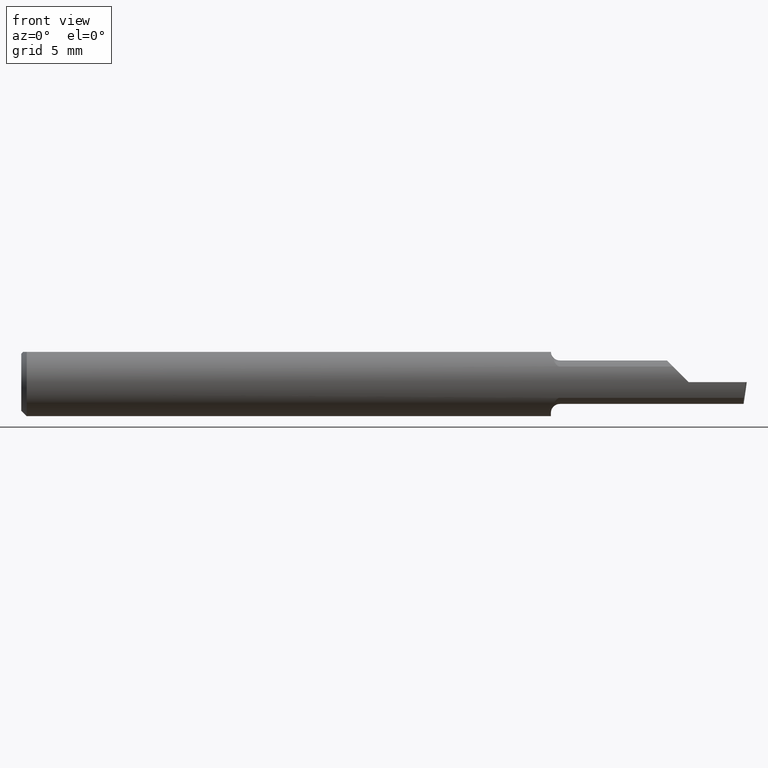
[diagram: clean part render]
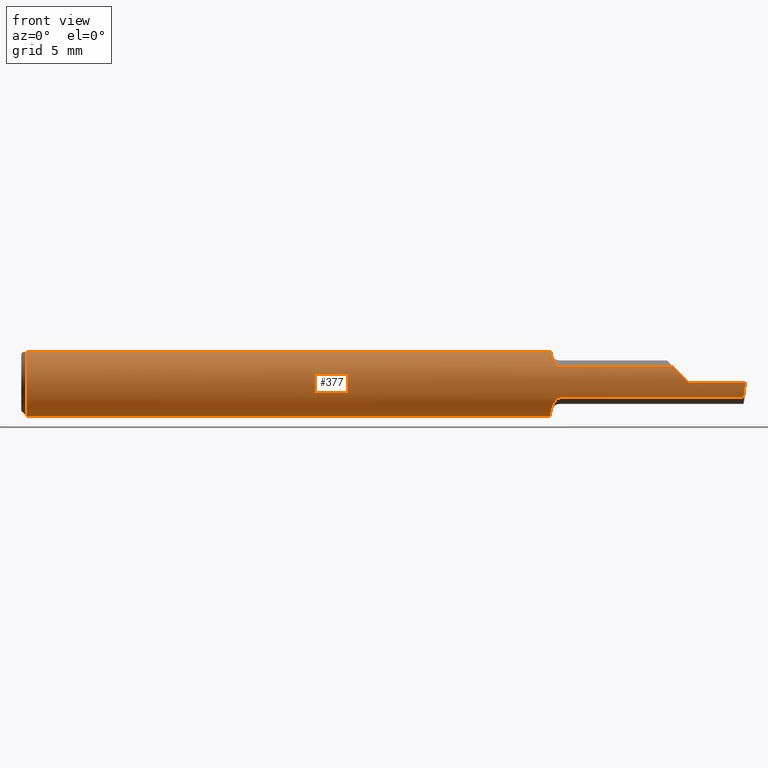
[diagram: same view with one face highlighted and labeled with its STEP entity id]
A machine part, front view. The second image highlights one B-rep face of the part: STEP entity #377.
In plain terms, the highlighted cylindrical surface (edge-blend (fillet) strip) has radius 2.3774 mm, axis along (-1, -0, -0).
Its self-contained STEP definition (entity closure, byte-faithful):
#2 = CARTESIAN_POINT ( 'NONE',  ( 1.475354605856553425, -0.08039319987159070091, -0.04797642756495486965 ) ) ;
#3 = VERTEX_POINT ( 'NONE', #570 ) ;
#6 = CARTESIAN_POINT ( 'NONE',  ( 1.482100790213033426, -0.08307469879518095124, -0.04312255117789263320 ) ) ;
#7 = VERTEX_POINT ( 'NONE', #457 ) ;
#8 = CARTESIAN_POINT ( 'NONE',  ( 1.840000000000000080, -0.09360000000000005815, 1.959434878635762025E-17 ) ) ;
#9 = LINE ( 'NONE', #612, #77 ) ;
#11 = AXIS2_PLACEMENT_3D ( 'NONE', #184, #492, #599 ) ;
#12 = VERTEX_POINT ( 'NONE', #64 ) ;
#22 = VERTEX_POINT ( 'NONE', #296 ) ;
#23 = CARTESIAN_POINT ( 'NONE',  ( 1.463721006865826846, -0.06478644025684780761, 0.06776242552123266927 ) ) ;
#24 = VECTOR ( 'NONE', #215, 39.37007874015748143 ) ;
#41 = ORIENTED_EDGE ( 'NONE', *, *, #302, .T. ) ;
#47 = AXIS2_PLACEMENT_3D ( 'NONE', #372, #316, #305 ) ;
#55 = CARTESIAN_POINT ( 'NONE',  ( 1.463605992736883632, -0.06448586599545333420, -0.06805619079784636094 ) ) ;
#57 = CARTESIAN_POINT ( 'NONE',  ( 1.484999999999999876, -0.08307469879518097899, -0.04312255117789268177 ) ) ;
#60 = CARTESIAN_POINT ( 'NONE',  ( 1.484999999999999876, -0.08307469879518063205, 0.04312255117789300790 ) ) ;
#61 = VERTEX_POINT ( 'NONE', #582 ) ;
#64 = CARTESIAN_POINT ( 'NONE',  ( 1.840000000000000080, -0.09360000000000005815, 1.959434878635762025E-17 ) ) ;
#66 = CARTESIAN_POINT ( 'NONE',  ( 1.467169981117899757, -0.07201923175886887352, 0.06001882546782344452 ) ) ;
#77 = VECTOR ( 'NONE', #660, 39.37007874015748143 ) ;
#90 = EDGE_CURVE ( 'NONE', #342, #547, #318, .T. ) ;
#93 = DIRECTION ( 'NONE',  ( -1.000000000000000000, -0.0000000000000000000, -0.0000000000000000000 ) ) ;
#94 = VECTOR ( 'NONE', #279, 39.37007874015748143 ) ;
#95 = ORIENTED_EDGE ( 'NONE', *, *, #149, .F. ) ;
#101 = B_SPLINE_CURVE_WITH_KNOTS ( 'NONE', 3,
 ( #57, #6, #293, #2, #249, #564, #152, #55, #353, #404, #406, #107 ),
 .UNSPECIFIED., .F., .F.,
 ( 4, 2, 2, 2, 2, 4 ),
 ( 1.963546462201886234E-07, 0.0002171101490734187974, 0.0004340239435006174387, 0.0008678515323550139082, 0.001301679121209410378, 0.001735506710063806739 ),
 .UNSPECIFIED. ) ;
#103 = VECTOR ( 'NONE', #385, 39.37007874015748143 ) ;
#107 = CARTESIAN_POINT ( 'NONE',  ( 1.460020127471512996, -0.04149999999999998829, -0.08389702020930184245 ) ) ;
#120 = CARTESIAN_POINT ( 'NONE',  ( 1.460020127471512996, -0.04149999999999998829, -0.08389702020930184245 ) ) ;
#136 = DIRECTION ( 'NONE',  ( 0.0000000000000000000, 0.0000000000000000000, 1.000000000000000000 ) ) ;
#149 = EDGE_CURVE ( 'NONE', #651, #659, #584, .T. ) ;
#152 = CARTESIAN_POINT ( 'NONE',  ( 1.467076397983110958, -0.07187891021191490648, -0.06019546731975674442 ) ) ;
#154 = CARTESIAN_POINT ( 'NONE',  ( 1.796877448822106649, -0.08307469879518077083, 0.04312255117789291076 ) ) ;
#173 = EDGE_CURVE ( 'NONE', #587, #3, #186, .T. ) ;
#174 = ORIENTED_EDGE ( 'NONE', *, *, #286, .T. ) ;
#176 = DIRECTION ( 'NONE',  ( -1.000000000000000000, -0.0000000000000000000, -0.0000000000000000000 ) ) ;
#184 = CARTESIAN_POINT ( 'NONE',  ( 0.01499999999999999598, 0.0000000000000000000, 0.0000000000000000000 ) ) ;
#186 = LINE ( 'NONE', #577, #270 ) ;
#187 = DIRECTION ( 'NONE',  ( 0.0000000000000000000, 0.0000000000000000000, 1.000000000000000000 ) ) ;
#195 = VERTEX_POINT ( 'NONE', #540 ) ;
#200 = EDGE_LOOP ( 'NONE', ( #95, #41, #498, #334, #658, #557, #509, #480, #390, #174, #636, #542, #446 ) ) ;
#210 = CARTESIAN_POINT ( 'NONE',  ( 1.479521451227007400, -0.08233651528522391294, 0.04455777109850302120 ) ) ;
#211 = CARTESIAN_POINT ( 'NONE',  ( 1.469277238843510025, -0.07518688180261749732, 0.05595855205958090439 ) ) ;
#215 = DIRECTION ( 'NONE',  ( -1.000000000000000000, -0.0000000000000000000, -0.0000000000000000000 ) ) ;
#218 = LINE ( 'NONE', #231, #94 ) ;
#220 = CARTESIAN_POINT ( 'NONE',  ( 1.460661035553191267, -0.05185656404701177724, 0.07811662714583193778 ) ) ;
#226 = CARTESIAN_POINT ( 'NONE',  ( 0.01499999999999999598, 0.0000000000000000000, 0.0000000000000000000 ) ) ;
#227 = CARTESIAN_POINT ( 'NONE',  ( 0.01499999999999999598, 0.04209513035969837669, 0.08360000000000000764 ) ) ;
#231 = CARTESIAN_POINT ( 'NONE',  ( 0.0000000000000000000, 0.04209513035969837669, 0.08360000000000000764 ) ) ;
#242 = VERTEX_POINT ( 'NONE', #227 ) ;
#246 = CARTESIAN_POINT ( 'NONE',  ( 1.824917075065774830, -0.09360000000000001652, 0.01508292493422502302 ) ) ;
#249 = CARTESIAN_POINT ( 'NONE',  ( 1.473672693420809754, -0.07917899622880059107, -0.04997532113045946578 ) ) ;
#268 = CARTESIAN_POINT ( 'NONE',  ( 1.459999999999999742, -0.03946024096385552377, -0.08487549341873930342 ) ) ;
#270 = VECTOR ( 'NONE', #470, 39.37007874015748143 ) ;
#276 = EDGE_CURVE ( 'NONE', #22, #12, #605, .T. ) ;
#279 = DIRECTION ( 'NONE',  ( 1.000000000000000000, 0.0000000000000000000, 0.0000000000000000000 ) ) ;
#286 = EDGE_CURVE ( 'NONE', #242, #7, #218, .T. ) ;
#287 = CARTESIAN_POINT ( 'NONE',  ( 0.01499999999999999598, 0.0000000000000000000, -0.09360000000000001652 ) ) ;
#293 = CARTESIAN_POINT ( 'NONE',  ( 1.479498465877713942, -0.08233174416856396671, -0.04456779206614371047 ) ) ;
#296 = CARTESIAN_POINT ( 'NONE',  ( 1.996386342823452287, -0.09360000000000009979, -6.634435288474569554E-17 ) ) ;
#302 = EDGE_CURVE ( 'NONE', #651, #22, #610, .T. ) ;
#305 = DIRECTION ( 'NONE',  ( 0.0000000000000000000, 0.0000000000000000000, -1.000000000000000000 ) ) ;
#314 = CARTESIAN_POINT ( 'NONE',  ( 1.669999999999999929, -0.08307469879518075695, -0.04312255117789293157 ) ) ;
#316 = DIRECTION ( 'NONE',  ( 1.000000000000000000, 0.0000000000000000000, 0.0000000000000000000 ) ) ;
#318 = CIRCLE ( 'NONE', #598, 0.09360000000000001652 ) ;
#320 = EDGE_CURVE ( 'NONE', #242, #342, #369, .T. ) ;
#334 = ORIENTED_EDGE ( 'NONE', *, *, #517, .T. ) ;
#342 = VERTEX_POINT ( 'NONE', #287 ) ;
#353 = CARTESIAN_POINT ( 'NONE',  ( 1.462355770679723221, -0.06040702343486038794, -0.07171535245186137775 ) ) ;
#356 = CARTESIAN_POINT ( 'NONE',  ( 0.01499999999999999944, -0.04209513035969835587, 0.08360000000000000764 ) ) ;
#358 = B_SPLINE_CURVE_WITH_KNOTS ( 'NONE', 3,
 ( #463, #581, #220, #623, #23, #66, #211, #419, #625, #210, #531, #60 ),
 .UNSPECIFIED., .F., .F.,
 ( 4, 2, 2, 2, 2, 4 ),
 ( 4.385794166508631868E-07, 0.0004249653867803445360, 0.0008494921941440379543, 0.001274019001507731372, 0.001486282405189578082, 0.001698545808871425008 ),
 .UNSPECIFIED. ) ;
#369 = CIRCLE ( 'NONE', #11, 0.09360000000000001652 ) ;
#372 = CARTESIAN_POINT ( 'NONE',  ( 1.459999999999999742, 0.0000000000000000000, 0.0000000000000000000 ) ) ;
#377 = ADVANCED_FACE ( 'NONE', ( #510 ), #654, .T. ) ;
#385 = DIRECTION ( 'NONE',  ( -1.000000000000000000, -0.0000000000000000000, -0.0000000000000000000 ) ) ;
#386 = EDGE_CURVE ( 'NONE', #195, #587, #358, .T. ) ;
#390 = ORIENTED_EDGE ( 'NONE', *, *, #320, .F. ) ;
#404 = CARTESIAN_POINT ( 'NONE',  ( 1.460604804002112234, -0.05145819953596712099, -0.07838465384289877713 ) ) ;
#406 = CARTESIAN_POINT ( 'NONE',  ( 1.460121283746727894, -0.04659318327468387616, -0.08137765652544184936 ) ) ;
#411 = EDGE_CURVE ( 'NONE', #61, #7, #424, .T. ) ;
#419 = CARTESIAN_POINT ( 'NONE',  ( 1.473723886093657676, -0.07921817987507920322, 0.04991299092652131536 ) ) ;
#424 = CIRCLE ( 'NONE', #47, 0.09360000000000001652 ) ;
#426 = EDGE_CURVE ( 'NONE', #473, #61, #614, .T. ) ;
#427 = CARTESIAN_POINT ( 'NONE',  ( 1.991365359011874947, -0.08307469879518075695, -0.04312255117789293157 ) ) ;
#446 = ORIENTED_EDGE ( 'NONE', *, *, #556, .F. ) ;
#450 = AXIS2_PLACEMENT_3D ( 'NONE', #549, #93, #187 ) ;
#455 = CARTESIAN_POINT ( 'NONE',  ( 1.810264301876177928, -0.09002356847881788637, 0.02973569812382168345 ) ) ;
#457 = CARTESIAN_POINT ( 'NONE',  ( 1.459999999999999742, 0.04209513035969836975, 0.08360000000000000764 ) ) ;
#462 = CARTESIAN_POINT ( 'NONE',  ( 1.991365359011874947, -0.08307469879518075695, -0.04312255117789293157 ) ) ;
#463 = CARTESIAN_POINT ( 'NONE',  ( 1.460033712670300021, -0.04209513035969835587, 0.08360000000000000764 ) ) ;
#470 = DIRECTION ( 'NONE',  ( 1.000000000000000000, 0.0000000000000000000, 0.0000000000000000000 ) ) ;
#472 = CARTESIAN_POINT ( 'NONE',  ( 1.460006719116742291, -0.04082489400077268099, -0.08423096411932438909 ) ) ;
#473 = VERTEX_POINT ( 'NONE', #637 ) ;
#476 = CARTESIAN_POINT ( 'NONE',  ( 1.459999999999999742, -0.04014498638740777309, -0.08455714216888013390 ) ) ;
#480 = ORIENTED_EDGE ( 'NONE', *, *, #90, .F. ) ;
#485 = CARTESIAN_POINT ( 'NONE',  ( 1.996386342823452287, -0.09360000000000009979, -6.634435288474569554E-17 ) ) ;
#492 = DIRECTION ( 'NONE',  ( -1.000000000000000000, -0.0000000000000000000, -0.0000000000000000000 ) ) ;
#498 = ORIENTED_EDGE ( 'NONE', *, *, #276, .T. ) ;
#509 = ORIENTED_EDGE ( 'NONE', *, *, #576, .T. ) ;
#510 = FACE_OUTER_BOUND ( 'NONE', #200, .T. ) ;
#517 = EDGE_CURVE ( 'NONE', #12, #3, #643, .T. ) ;
#518 = CARTESIAN_POINT ( 'NONE',  ( 1.484999999999999876, -0.08307469879518097899, -0.04312255117789268177 ) ) ;
#531 = CARTESIAN_POINT ( 'NONE',  ( 1.482123707331537199, -0.08307469879541817814, 0.04312255117743571398 ) ) ;
#540 = CARTESIAN_POINT ( 'NONE',  ( 1.460033712670300021, -0.04209513035969835587, 0.08360000000000000764 ) ) ;
#542 = ORIENTED_EDGE ( 'NONE', *, *, #426, .F. ) ;
#547 = VERTEX_POINT ( 'NONE', #356 ) ;
#549 = CARTESIAN_POINT ( 'NONE',  ( 0.0000000000000000000, 0.0000000000000000000, 0.0000000000000000000 ) ) ;
#556 = EDGE_CURVE ( 'NONE', #659, #473, #101, .T. ) ;
#557 = ORIENTED_EDGE ( 'NONE', *, *, #386, .F. ) ;
#564 = CARTESIAN_POINT ( 'NONE',  ( 1.469237437666585322, -0.07513599091569016231, -0.05602756047418831070 ) ) ;
#570 = CARTESIAN_POINT ( 'NONE',  ( 1.796877448822106649, -0.08307469879518077083, 0.04312255117789291076 ) ) ;
#576 = EDGE_CURVE ( 'NONE', #195, #547, #9, .T. ) ;
#577 = CARTESIAN_POINT ( 'NONE',  ( 1.669999999999999929, -0.08307469879518075695, 0.04312255117789293157 ) ) ;
#581 = CARTESIAN_POINT ( 'NONE',  ( 1.460163936266268392, -0.04714148439307230126, 0.08105900800387491612 ) ) ;
#582 = CARTESIAN_POINT ( 'NONE',  ( 1.459999999999999742, -0.03946024096385552377, -0.08487549341873930342 ) ) ;
#584 = LINE ( 'NONE', #314, #24 ) ;
#586 = CARTESIAN_POINT ( 'NONE',  ( 1.484999999999999876, -0.08307469879518063205, 0.04312255117789300790 ) ) ;
#587 = VERTEX_POINT ( 'NONE', #586 ) ;
#591 = CARTESIAN_POINT ( 'NONE',  ( 1.992827658777091893, -0.09002356847881787250, -0.02973569812382171815 ) ) ;
#598 = AXIS2_PLACEMENT_3D ( 'NONE', #226, #176, #136 ) ;
#599 = DIRECTION ( 'NONE',  ( 0.0000000000000000000, 0.0000000000000000000, 1.000000000000000000 ) ) ;
#605 = LINE ( 'NONE', #638, #103 ) ;
#610 =( BOUNDED_CURVE ( )  B_SPLINE_CURVE ( 3, ( #427, #591, #642, #485 ),
 .UNSPECIFIED., .F., .T. ) 
 B_SPLINE_CURVE_WITH_KNOTS ( ( 4, 4 ),
 ( 0.8819507499627812219, 1.360746882514778822 ),
 .UNSPECIFIED. ) 
 CURVE ( )  GEOMETRIC_REPRESENTATION_ITEM ( )  RATIONAL_B_SPLINE_CURVE ( ( 1.000000000000000000, 0.9809872534005956712, 0.9809872534005956712, 1.000000000000000000 ) ) 
 REPRESENTATION_ITEM ( '' )  );
#612 = CARTESIAN_POINT ( 'NONE',  ( 0.0000000000000000000, -0.04209513035969835587, 0.08360000000000000764 ) ) ;
#614 = B_SPLINE_CURVE_WITH_KNOTS ( 'NONE', 3,
 ( #120, #472, #476, #268 ),
 .UNSPECIFIED., .F., .F.,
 ( 4, 4 ),
 ( 0.001735506710063806739, 0.001793010945052110183 ),
 .UNSPECIFIED. ) ;
#623 = CARTESIAN_POINT ( 'NONE',  ( 1.462429122971264928, -0.06066239981255450858, 0.07149394324265900824 ) ) ;
#625 = CARTESIAN_POINT ( 'NONE',  ( 1.475413575230741348, -0.08042664989321213209, 0.04791921015141206719 ) ) ;
#636 = ORIENTED_EDGE ( 'NONE', *, *, #411, .F. ) ;
#637 = CARTESIAN_POINT ( 'NONE',  ( 1.460020127471512996, -0.04149999999999998829, -0.08389702020930184245 ) ) ;
#638 = CARTESIAN_POINT ( 'NONE',  ( 5.659797890829555466E-31, -0.09359999999999998876, 1.030335658007946046E-15 ) ) ;
#642 = CARTESIAN_POINT ( 'NONE',  ( 1.994533757673610186, -0.09360000000000003040, -0.01508292493422506118 ) ) ;
#643 =( BOUNDED_CURVE ( )  B_SPLINE_CURVE ( 3, ( #8, #246, #455, #154 ),
 .UNSPECIFIED., .F., .T. ) 
 B_SPLINE_CURVE_WITH_KNOTS ( ( 4, 4 ),
 ( 4.712388980384689674, 5.191185112936687496 ),
 .UNSPECIFIED. ) 
 CURVE ( )  GEOMETRIC_REPRESENTATION_ITEM ( )  RATIONAL_B_SPLINE_CURVE ( ( 1.000000000000000000, 0.9809872534005956712, 0.9809872534005956712, 1.000000000000000000 ) ) 
 REPRESENTATION_ITEM ( '' )  );
#651 = VERTEX_POINT ( 'NONE', #462 ) ;
#654 = CYLINDRICAL_SURFACE ( 'NONE', #450, 0.09360000000000001652 ) ;
#658 = ORIENTED_EDGE ( 'NONE', *, *, #173, .F. ) ;
#659 = VERTEX_POINT ( 'NONE', #518 ) ;
#660 = DIRECTION ( 'NONE',  ( -1.000000000000000000, -0.0000000000000000000, -0.0000000000000000000 ) ) ;